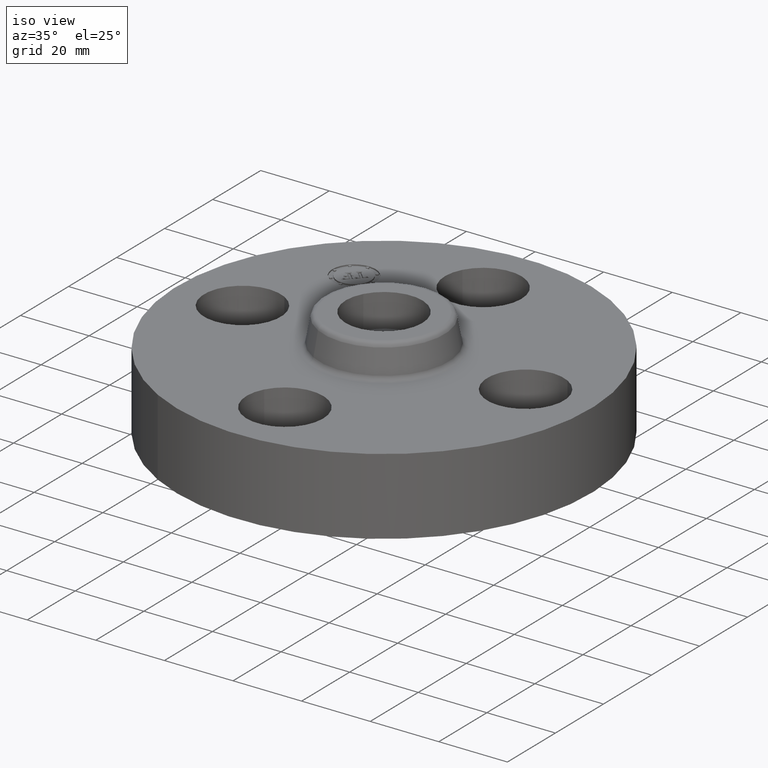
[diagram: clean part render]
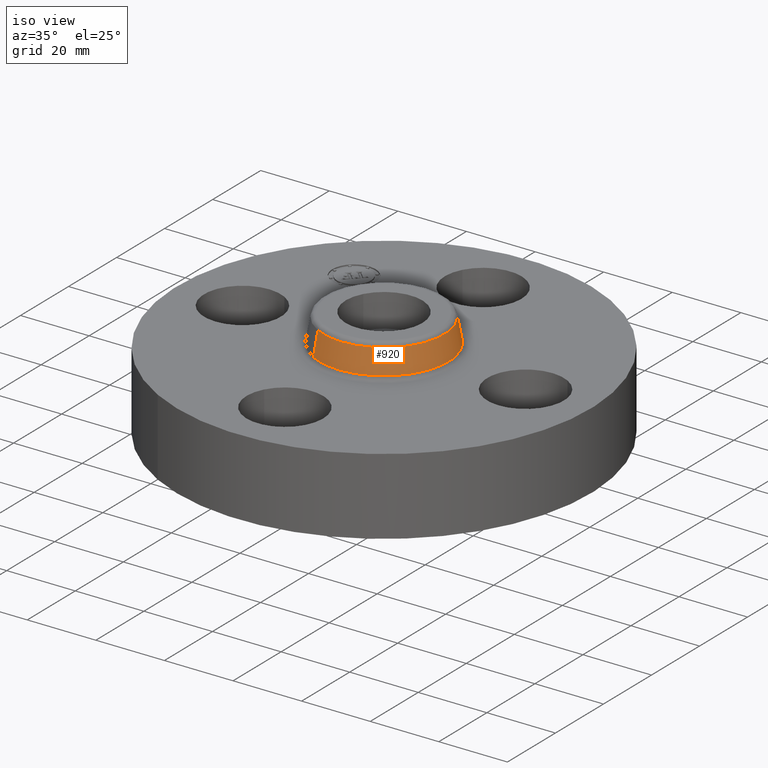
[diagram: same view with one face highlighted and labeled with its STEP entity id]
A machine part, iso view. The second image highlights one B-rep face of the part: STEP entity #920.
In plain terms, the highlighted conical surface has half-angle 10 deg.
Its self-contained STEP definition (entity closure, byte-faithful):
#813=AXIS2_PLACEMENT_3D('Circle Axis2P3D',#811,#812,$) ;
#893=AXIS2_PLACEMENT_3D('Cone Axis2P3D',#890,#891,#892) ;
#904=AXIS2_PLACEMENT_3D('Circle Axis2P3D',#902,#903,$) ;
#808=CARTESIAN_POINT('Vertex',(0.355377782267,0.650514667009,0.929581109344)) ;
#811=CARTESIAN_POINT('Axis2P3D Location',(0.,0.,0.929581109344)) ;
#815=CARTESIAN_POINT('Vertex',(-0.355377782267,-0.650514667009,0.929581109344)) ;
#890=CARTESIAN_POINT('Axis2P3D Location',(0.,0.,1.20041889066)) ;
#895=CARTESIAN_POINT('Line Origine',(0.343930057281,0.62955974698,1.065)) ;
#899=CARTESIAN_POINT('Vertex',(0.332482332294,0.608604826951,1.20041889066)) ;
#902=CARTESIAN_POINT('Axis2P3D Location',(0.,0.,1.20041889066)) ;
#906=CARTESIAN_POINT('Vertex',(-0.332482332294,-0.608604826951,1.20041889066)) ;
#909=CARTESIAN_POINT('Line Origine',(-0.343930057281,-0.62955974698,1.065)) ;
#812=DIRECTION('Axis2P3D Direction',(0.,0.,-0.0393700787402)) ;
#891=DIRECTION('Axis2P3D Direction',(0.,0.,-0.0393700787402)) ;
#892=DIRECTION('Axis2P3D XDirection',(-0.0188750212049,-0.0345504945626,0.)) ;
#896=DIRECTION('Vector Direction',(0.00327761303565,0.00599963041829,-0.03877195878)) ;
#903=DIRECTION('Axis2P3D Direction',(0.,0.,-0.0393700787402)) ;
#910=DIRECTION('Vector Direction',(-0.00327761303565,-0.00599963041829,-0.03877195878)) ;
#897=VECTOR('Line Direction',#896,0.0393700787402) ;
#911=VECTOR('Line Direction',#910,0.0393700787402) ;
#915=ORIENTED_EDGE('',*,*,#817,.F.) ;
#916=ORIENTED_EDGE('',*,*,#901,.T.) ;
#917=ORIENTED_EDGE('',*,*,#908,.T.) ;
#918=ORIENTED_EDGE('',*,*,#913,.F.) ;
#920=ADVANCED_FACE('PartBody',(#919),#894,.T.) ;
#814=CIRCLE('generated circle',#813,0.741257512693) ;
#905=CIRCLE('generated circle',#904,0.693501504451) ;
#894=CONICAL_SURFACE('Cone',#893,0.693501504451,0.174532925199) ;
#817=EDGE_CURVE('',#809,#816,#814,.T.) ;
#901=EDGE_CURVE('',#809,#900,#898,.F.) ;
#908=EDGE_CURVE('',#900,#907,#905,.T.) ;
#913=EDGE_CURVE('',#816,#907,#912,.F.) ;
#914=EDGE_LOOP('',(#915,#916,#917,#918)) ;
#919=FACE_OUTER_BOUND('',#914,.T.) ;
#898=LINE('Line',#895,#897) ;
#912=LINE('Line',#909,#911) ;
#809=VERTEX_POINT('',#808) ;
#816=VERTEX_POINT('',#815) ;
#900=VERTEX_POINT('',#899) ;
#907=VERTEX_POINT('',#906) ;